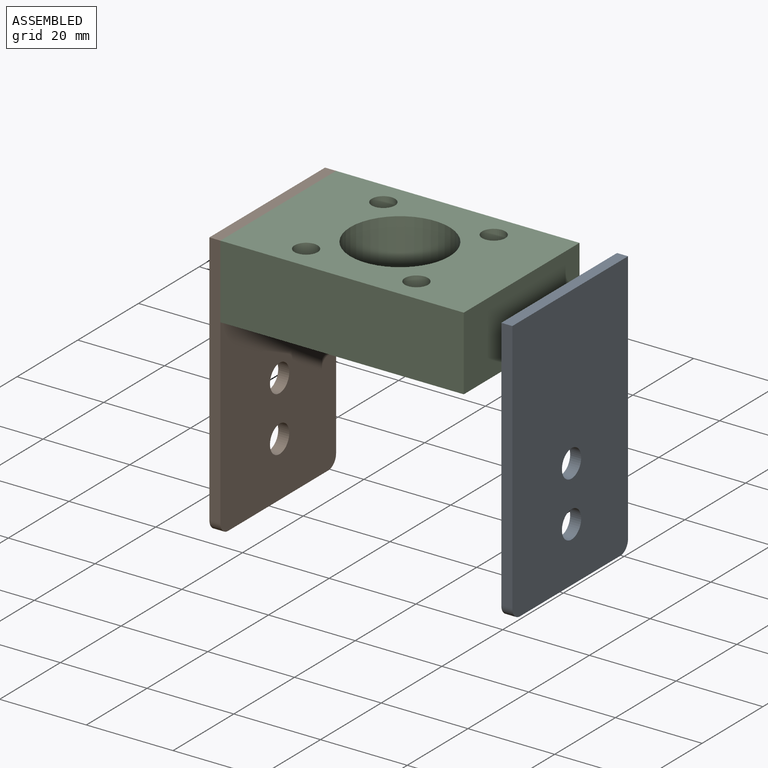
[diagram: assembled view]
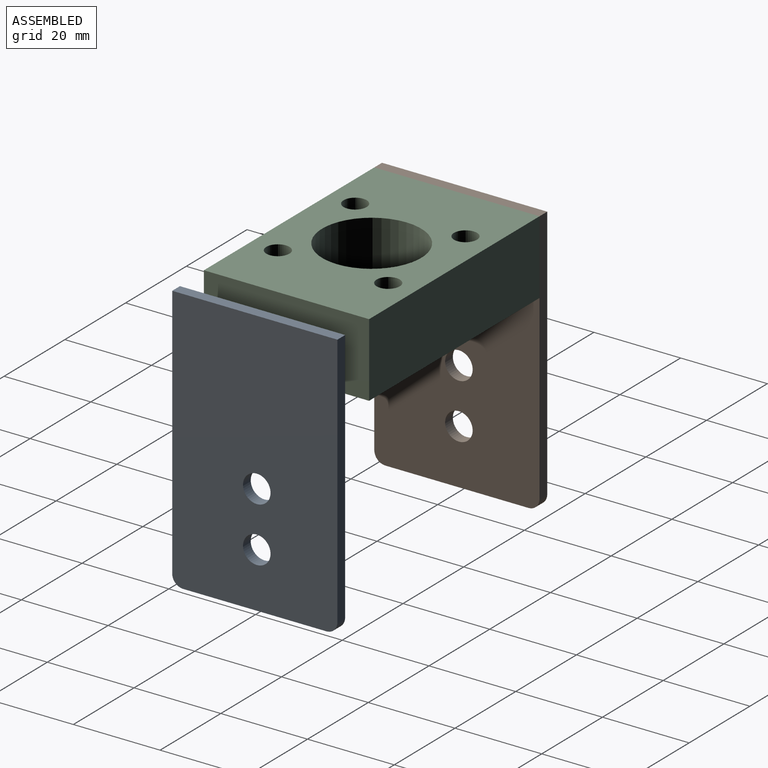
[diagram: assembled view, second angle]
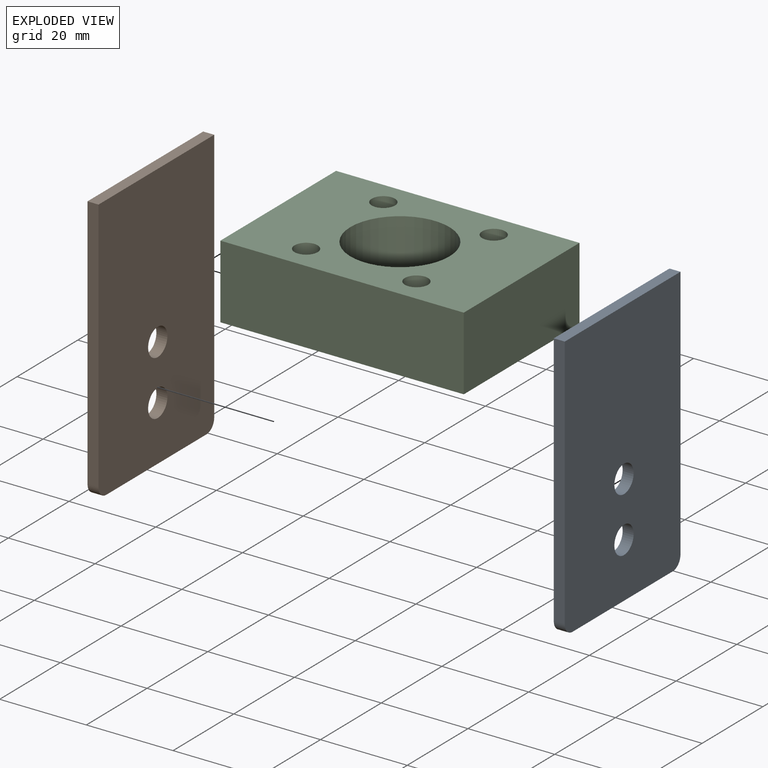
[diagram: exploded view]
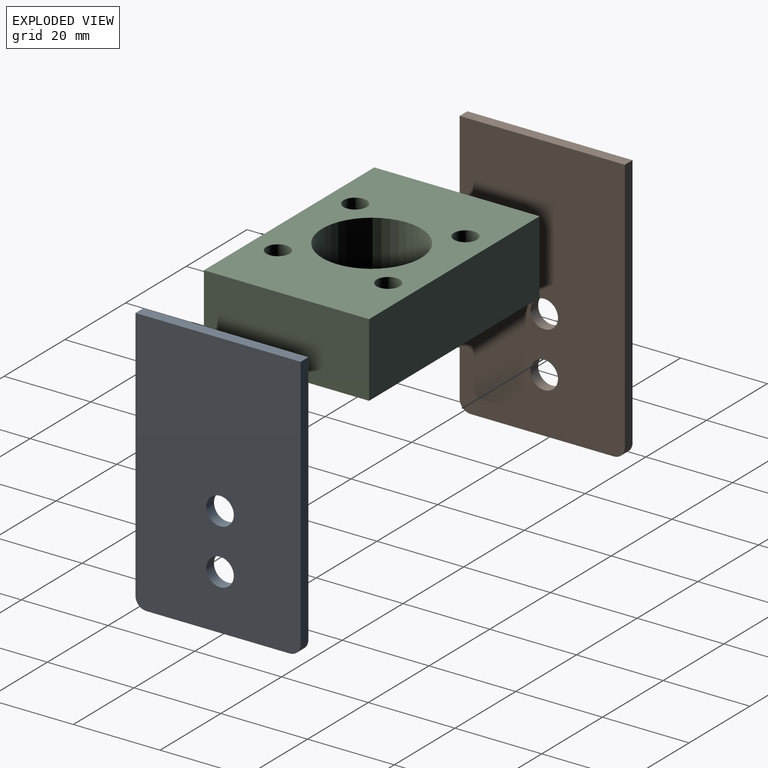
[diagram: exploded view, second angle]
ASSEMBLY  parts=3 mates=2
PART A: 10 faces, bbox 2.5x38.1x61.5 mm
  f0: plane 38.1x2.54mm, normal (0,0,1), area 96.8mm2, adj f1,f3,f4,f5
  f1: plane 58.93x2.54mm, normal (0,-1,0), area 149.7mm2, adj f0,f4,f5,f8
  f2: plane 33.02x2.54mm, normal (0,0,-1), area 83.9mm2, adj f4,f5,f8,f9
  f3: plane 58.93x2.54mm, normal (0,1,0), area 149.7mm2, adj f0,f4,f5,f9
  f4: plane 61.47x38.1mm, normal (1,0,0), area 2275.8mm2, adj f0,f1,f2,f3,f6,f7,f8,f9
  f5: plane 61.47x38.1mm, normal (-1,0,0), area 2275.8mm2, adj f0,f1,f2,f3,f6,f7,f8,f9
  f6: cylinder r=3.17mm len=6.35mm, axis (1,0,0), area 50.7mm2, adj f4,f5
  f7: cylinder r=3.17mm len=6.35mm, axis (1,0,0), area 50.7mm2, adj f4,f5
  f8: cylinder r=2.54mm len=2.54mm, axis (-1,0,0), area 10.1mm2, adj f1,f2,f4,f5
  f9: cylinder r=2.54mm len=2.54mm, axis (1,0,0), area 10.1mm2, adj f2,f3,f4,f5
PART B: same geometry as A
PART C: 19 faces, bbox 56.1x38.1x17 mm
  f0: plane 56.13x17.02mm, normal (0,-1,0), area 955.3mm2, adj f1,f3,f4,f5
  f1: plane 38.1x17.02mm, normal (1,0,0), area 648.4mm2, adj f0,f2,f4,f5
  f2: plane 56.13x17.02mm, normal (0,1,0), area 955.3mm2, adj f1,f3,f4,f5
  f3: plane 38.1x17.02mm, normal (-1,0,0), area 648.4mm2, adj f0,f2,f4,f5
  f4: plane 56.13x38.1mm, normal (0,0,1), area 1638.9mm2, adj f0,f1,f2,f3,f6,f7,f8,f9
  f5: plane 56.13x38.1mm, normal (0,0,-1), area 1507.6mm2, adj f0,f1,f2,f3,f11,f13,f15,f17
  f6: cylinder r=2.67mm len=5.33mm, axis (0,0,1), area 63.8mm2, adj f4,f16
  f7: cylinder r=2.67mm len=5.33mm, axis (0,0,1), area 63.8mm2, adj f4,f14
  f8: cylinder r=2.67mm len=5.33mm, axis (0,0,1), area 63.8mm2, adj f4,f12
  f9: cylinder r=2.67mm len=5.33mm, axis (0,0,1), area 63.8mm2, adj f4,f10
  f10: plane 8.38x8.38mm, normal (0,0,-1), area 32.8mm2, adj f9,f11
  f11: cylinder r=4.19mm len=13.21mm, axis (0,0,-1), area 347.8mm2, adj f5,f10
  f12: plane 8.38x8.38mm, normal (0,0,-1), area 32.8mm2, adj f8,f13
  f13: cylinder r=4.19mm len=13.21mm, axis (0,0,-1), area 347.8mm2, adj f5,f12
  f14: plane 8.38x8.38mm, normal (0,0,-1), area 32.8mm2, adj f7,f15
  f15: cylinder r=4.19mm len=13.21mm, axis (0,0,-1), area 347.8mm2, adj f5,f14
  f16: plane 8.38x8.38mm, normal (0,0,-1), area 32.8mm2, adj f6,f17
  f17: cylinder r=4.19mm len=13.21mm, axis (0,0,-1), area 347.8mm2, adj f5,f16
  f18: cylinder r=11.43mm len=22.86mm, axis (0,0,1), area 1222.2mm2, adj f4,f5
PLACE A t=(18.59,0.63,-37.07)mm
PLACE B t=(-48.49,0.27,-37.07)mm
PLACE C t=(-17.88,0.27,7.38)mm fixed
MATE planar C.f3 <-> B.f4  axis (-1,0,0) through (-45.95,0.27,15.89)mm
MATE planar C.f18 <-> B.f0  axis (0,0,1) through (-17.88,0.27,24.4)mm
